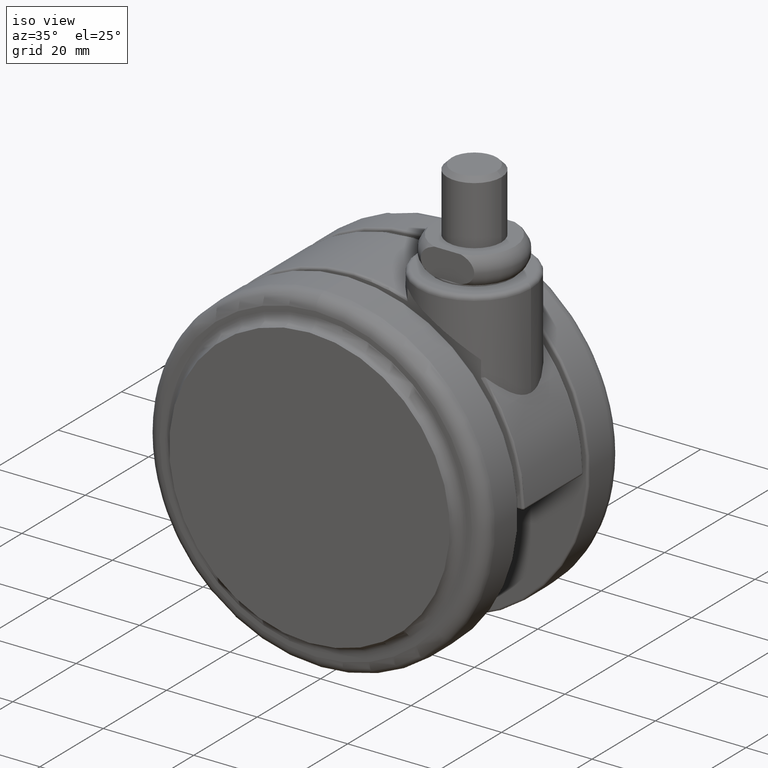
[diagram: clean part render]
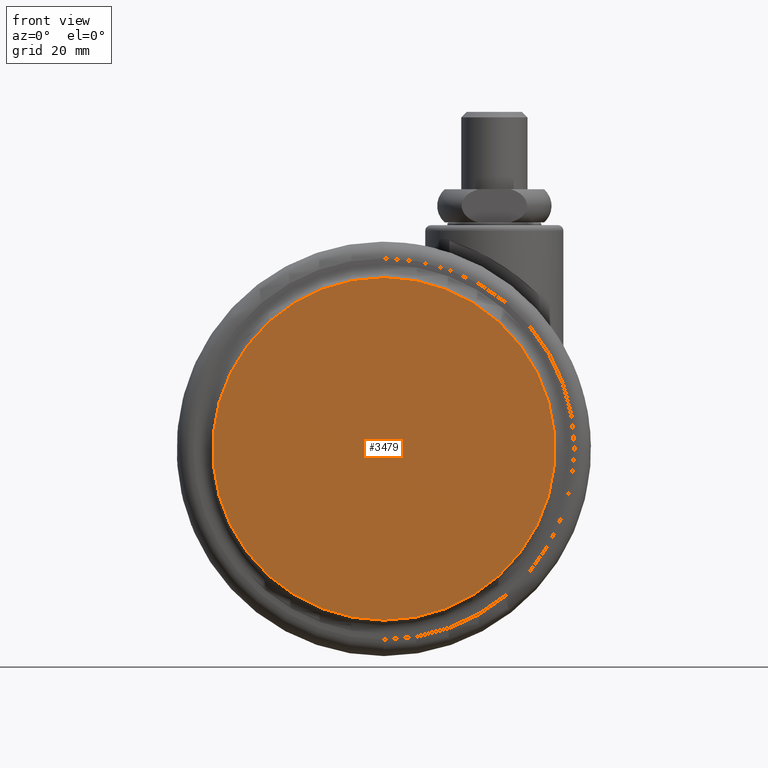
[diagram: tour spotlight — one face highlighted and labeled with its STEP entity id]
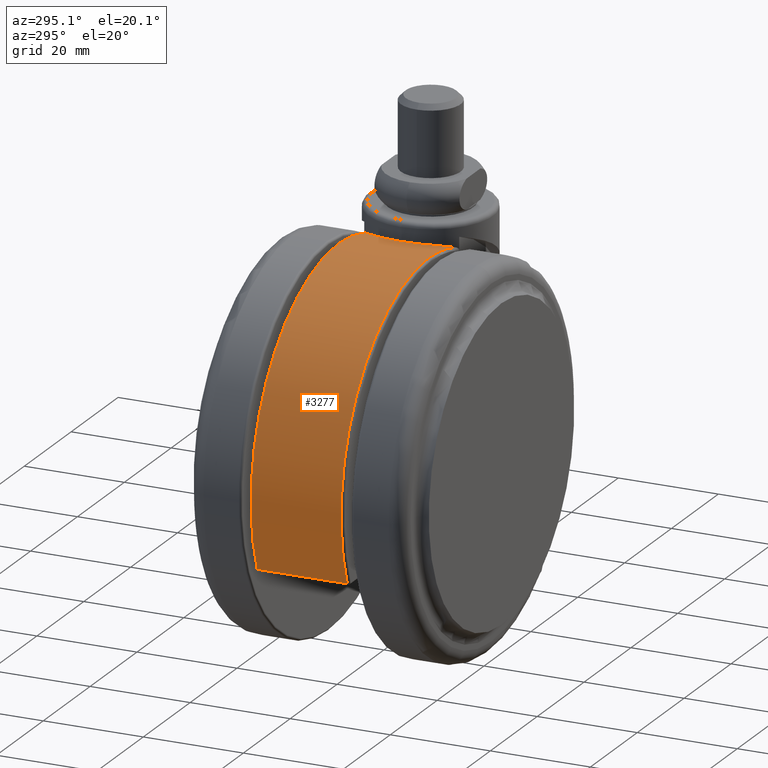
[diagram: tour spotlight — one face highlighted and labeled with its STEP entity id]
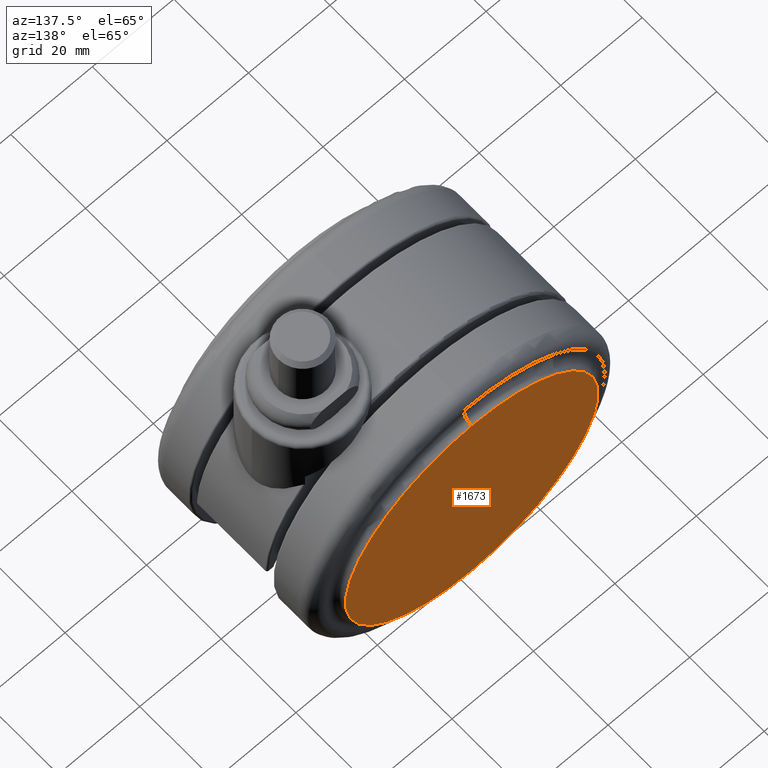
[diagram: tour spotlight — one face highlighted and labeled with its STEP entity id]
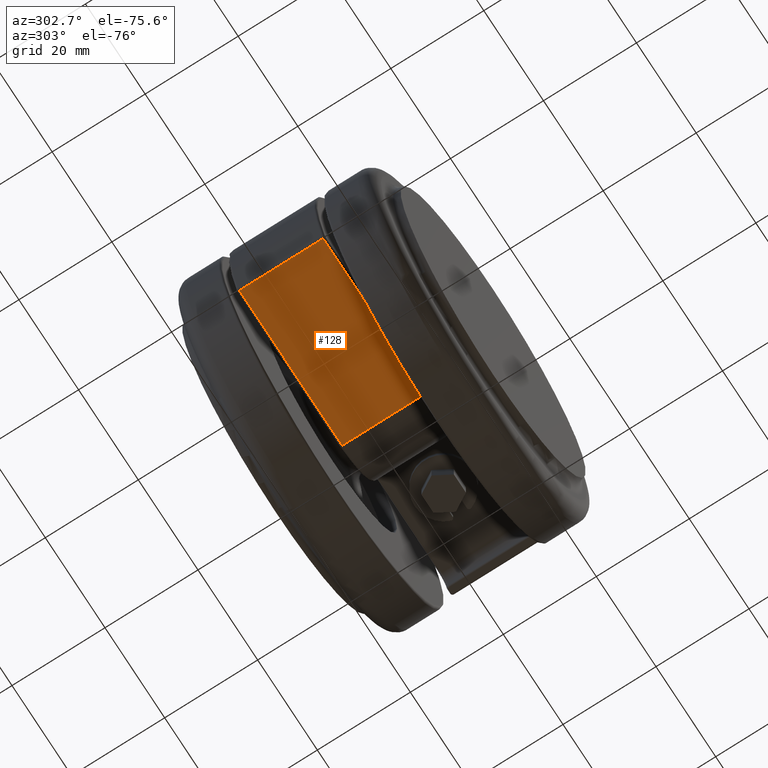
[diagram: tour spotlight — one face highlighted and labeled with its STEP entity id]
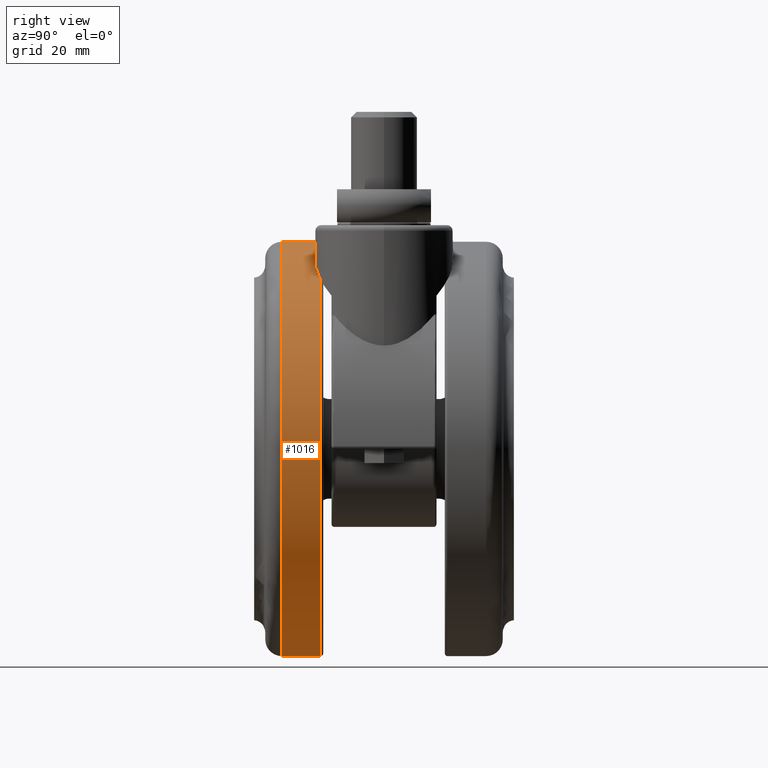
[diagram: tour spotlight — one face highlighted and labeled with its STEP entity id]
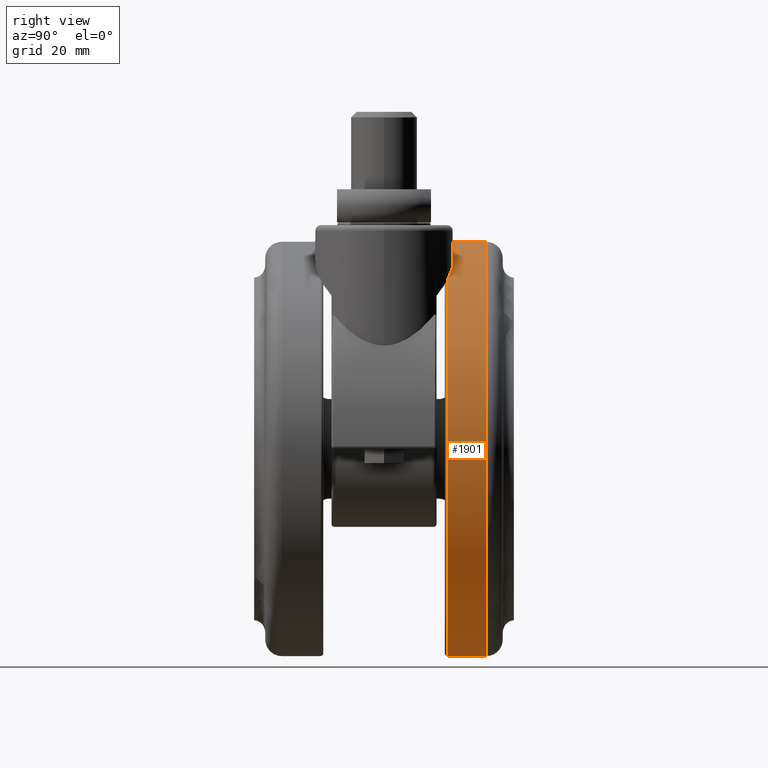
[diagram: tour spotlight — one face highlighted and labeled with its STEP entity id]
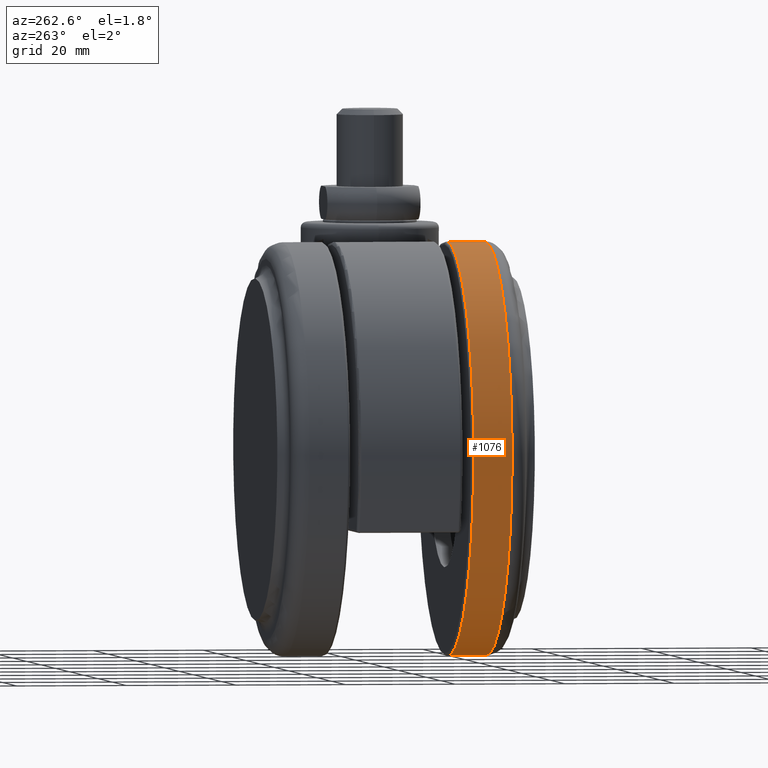
[diagram: tour spotlight — one face highlighted and labeled with its STEP entity id]
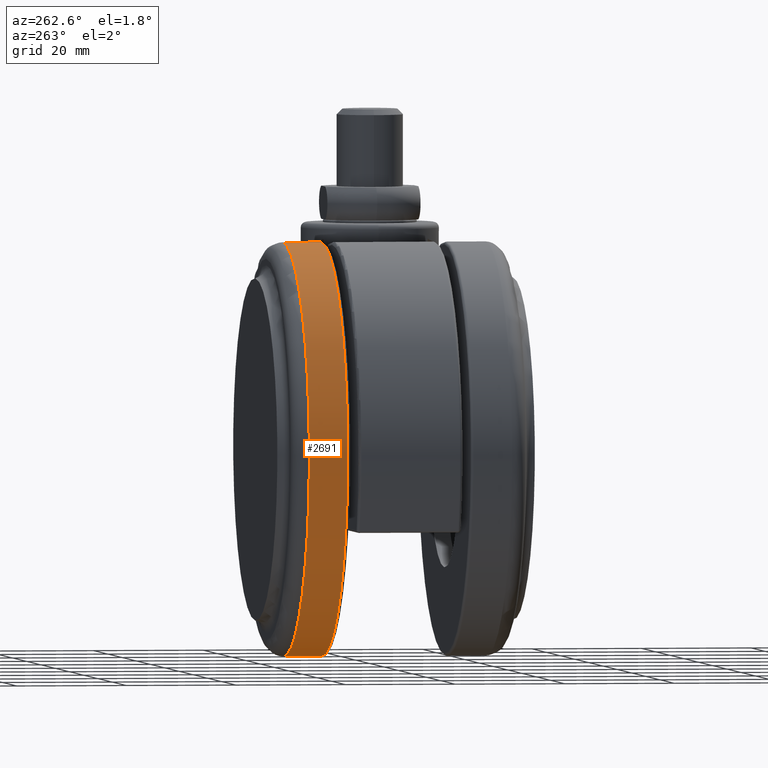
[diagram: tour spotlight — one face highlighted and labeled with its STEP entity id]
A machine part: a face-by-face anatomy tour. The part has 126 B-rep faces; the first image is the clean iso view, then the 8 largest visible faces are spotlighted one at a time (largest first), each with its STEP entity span.

Face 1 — front view, entity #3479. In plain terms, the highlighted planar face has unit normal (0, -1, 0).
Definition (entity closure, byte-faithful):
#116 = EDGE_CURVE ( 'NONE', #3662, #1943, #3283, .T. ) ;
#235 = ORIENTED_EDGE ( 'NONE', *, *, #116, .T. ) ;
#494 = AXIS2_PLACEMENT_3D ( 'NONE', #2739, #1700, #1677 ) ;
#603 = CARTESIAN_POINT ( 'NONE',  ( -20.00000000000000000, -23.50000000000000000, -40.50000000000000000 ) ) ;
#976 = DIRECTION ( 'NONE',  ( 0.0000000000000000000, -1.000000000000000000, 0.0000000000000000000 ) ) ;
#1677 = DIRECTION ( 'NONE',  ( 0.0000000000000000000, 0.0000000000000000000, -1.000000000000000000 ) ) ;
#1700 = DIRECTION ( 'NONE',  ( 0.0000000000000000000, -1.000000000000000000, 0.0000000000000000000 ) ) ;
#1809 = DIRECTION ( 'NONE',  ( 0.0000000000000000000, 0.0000000000000000000, -1.000000000000000000 ) ) ;
#1870 = CIRCLE ( 'NONE', #2432, 31.00000000000000700 ) ;
#1929 = ORIENTED_EDGE ( 'NONE', *, *, #3006, .T. ) ;
#1943 = VERTEX_POINT ( 'NONE', #2853 ) ;
#2407 = PLANE ( 'NONE',  #3504 ) ;
#2432 = AXIS2_PLACEMENT_3D ( 'NONE', #2766, #976, #3077 ) ;
#2739 = CARTESIAN_POINT ( 'NONE',  ( -20.00000000000000000, -23.50000000000000000, -40.50000000000000000 ) ) ;
#2766 = CARTESIAN_POINT ( 'NONE',  ( -20.00000000000000000, -23.50000000000000000, -40.50000000000000000 ) ) ;
#2798 = CARTESIAN_POINT ( 'NONE',  ( -19.99999999999999600, -23.50000000000000000, -9.500000000000001800 ) ) ;
#2853 = CARTESIAN_POINT ( 'NONE',  ( -20.00000000000000000, -23.50000000000000000, -71.50000000000001400 ) ) ;
#2966 = EDGE_LOOP ( 'NONE', ( #1929, #235 ) ) ;
#3006 = EDGE_CURVE ( 'NONE', #1943, #3662, #1870, .T. ) ;
#3077 = DIRECTION ( 'NONE',  ( 0.0000000000000000000, 0.0000000000000000000, -1.000000000000000000 ) ) ;
#3283 = CIRCLE ( 'NONE', #494, 31.00000000000000700 ) ;
#3479 = ADVANCED_FACE ( 'NONE', ( #3835 ), #2407, .T. ) ;
#3504 = AXIS2_PLACEMENT_3D ( 'NONE', #603, #3623, #1809 ) ;
#3623 = DIRECTION ( 'NONE',  ( 0.0000000000000000000, -1.000000000000000000, 0.0000000000000000000 ) ) ;
#3662 = VERTEX_POINT ( 'NONE', #2798 ) ;
#3835 = FACE_OUTER_BOUND ( 'NONE', #2966, .T. ) ;

Face 2 — auxiliary view, entity #3277. In plain terms, the highlighted cylindrical surface (partial cylindrical patch) has radius 37.5 mm, axis along (0, -1, 0).
Definition (entity closure, byte-faithful):
#42 = AXIS2_PLACEMENT_3D ( 'NONE', #838, #2935, #1132 ) ;
#86 = CARTESIAN_POINT ( 'NONE',  ( -11.65766593866017000, -4.530314039475490200, -3.939311114517211700 ) ) ;
#150 = CARTESIAN_POINT ( 'NONE',  ( -10.51789632378315200, 6.767247206361606300, -4.217783199591902000 ) ) ;
#239 = B_SPLINE_CURVE_WITH_KNOTS ( 'NONE', 3,
 ( #3762, #764, #2862, #1067, #3167, #1364, #3470, #1665, #3775, #1950, #150, #2269, #461, #2566, #780, #2873 ),
 .UNSPECIFIED., .F., .F.,
 ( 4, 2, 2, 2, 2, 2, 2, 4 ),
 ( 0.01083297000393782300, 0.01209086360940814100, 0.01334875721487845800, 0.01586454442581909300, 0.01712243803128940900, 0.01838033163675972500, 0.01963822524223004400, 0.02089611884770036000 ),
 .UNSPECIFIED. ) ;
#342 = VECTOR ( 'NONE', #2556, 1000.000000000000000 ) ;
#396 = CARTESIAN_POINT ( 'NONE',  ( -9.267378490791253800, -8.428721800230761100, -4.563286331331251100 ) ) ;
#408 = CARTESIAN_POINT ( 'NONE',  ( -12.05401286481520300, -3.335758711177920300, -3.851291589132261400 ) ) ;
#461 = CARTESIAN_POINT ( 'NONE',  ( -9.794559992498440300, 7.777407367369056200, -4.414310978766519800 ) ) ;
#534 = AXIS2_PLACEMENT_3D ( 'NONE', #1113, #1922, #1689 ) ;
#606 = VERTEX_POINT ( 'NONE', #1709 ) ;
#714 = CARTESIAN_POINT ( 'NONE',  ( -12.41604507323763200, -1.677237000265646300, -3.774477651932344200 ) ) ;
#722 = ORIENTED_EDGE ( 'NONE', *, *, #3201, .T. ) ;
#764 = CARTESIAN_POINT ( 'NONE',  ( -12.50000000000000000, 0.4198857714410683100, -3.757653858252427700 ) ) ;
#770 = AXIS2_PLACEMENT_3D ( 'NONE', #2154, #3072, #3043 ) ;
#780 = CARTESIAN_POINT ( 'NONE',  ( -8.972938191872776400, 8.712518925962278600, -4.656565500695855100 ) ) ;
#838 = CARTESIAN_POINT ( 'NONE',  ( -20.00000000000045100, -8.999999999999799300, -40.50000000000000000 ) ) ;
#910 = EDGE_CURVE ( 'NONE', #1749, #1784, #3898, .T. ) ;
#1021 = CARTESIAN_POINT ( 'NONE',  ( -12.50000000000000000, 2.995251654553703900E-014, -3.757653858252425000 ) ) ;
#1067 = CARTESIAN_POINT ( 'NONE',  ( -12.39317029340259800, 1.685029787549746400, -3.779596173792669300 ) ) ;
#1113 = CARTESIAN_POINT ( 'NONE',  ( -20.00000000000045100, 9.000000000000199000, -40.50000000000000000 ) ) ;
#1132 = DIRECTION ( 'NONE',  ( 0.0000000000000000000, 0.0000000000000000000, 1.000000000000000000 ) ) ;
#1140 = EDGE_CURVE ( 'NONE', #1784, #1859, #3557, .T. ) ;
#1307 = CARTESIAN_POINT ( 'NONE',  ( -9.802904443546696100, -7.800582663888066600, -4.409683149507409400 ) ) ;
#1364 = CARTESIAN_POINT ( 'NONE',  ( -12.07499608784259600, 3.339284003571599600, -3.846566198035183500 ) ) ;
#1419 = CARTESIAN_POINT ( 'NONE',  ( -54.86951361419750100, -8.999999999999799300, -54.29735555493609700 ) ) ;
#1524 = CARTESIAN_POINT ( 'NONE',  ( -8.674675786448901200, -8.999999999999809900, -4.751055519666890000 ) ) ;
#1606 = CARTESIAN_POINT ( 'NONE',  ( -10.73847770299704000, -6.411853426593876500, -4.161066474243648700 ) ) ;
#1612 = ORIENTED_EDGE ( 'NONE', *, *, #910, .T. ) ;
#1617 = CARTESIAN_POINT ( 'NONE',  ( -54.86951361419750100, 9.000000000000199000, -54.29735555493609700 ) ) ;
#1665 = CARTESIAN_POINT ( 'NONE',  ( -11.32890675711923300, 5.299343921343998800, -4.015880330838450100 ) ) ;
#1686 = DIRECTION ( 'NONE',  ( 0.0000000000000000000, -1.000000000000000000, 0.0000000000000000000 ) ) ;
#1689 = DIRECTION ( 'NONE',  ( 0.0000000000000000000, 0.0000000000000000000, -1.000000000000000000 ) ) ;
#1709 = CARTESIAN_POINT ( 'NONE',  ( -8.674675786448901200, -8.999999999999809900, -4.751055519666890000 ) ) ;
#1741 = EDGE_CURVE ( 'NONE', #1859, #3422, #3892, .T. ) ;
#1749 = VERTEX_POINT ( 'NONE', #2183 ) ;
#1784 = VERTEX_POINT ( 'NONE', #1617 ) ;
#1852 = VERTEX_POINT ( 'NONE', #2322 ) ;
#1859 = VERTEX_POINT ( 'NONE', #1419 ) ;
#1894 = CARTESIAN_POINT ( 'NONE',  ( -11.32877515779916800, -5.299412595533453000, -4.015916222165394300 ) ) ;
#1922 = DIRECTION ( 'NONE',  ( 0.0000000000000000000, -1.000000000000000000, 0.0000000000000000000 ) ) ;
#1950 = CARTESIAN_POINT ( 'NONE',  ( -10.73730232612175200, 6.413705260039230400, -4.161370447469451500 ) ) ;
#2067 = FACE_OUTER_BOUND ( 'NONE', #3938, .T. ) ;
#2154 = CARTESIAN_POINT ( 'NONE',  ( -20.00000000000045100, -8.999999999999799300, -40.50000000000000000 ) ) ;
#2182 = B_SPLINE_CURVE_WITH_KNOTS ( 'NONE', 3,
 ( #1524, #396, #1307, #3410, #1606, #3722, #1894, #86, #2210, #408, #2511, #714, #2813, #1021 ),
 .UNSPECIFIED., .F., .F.,
 ( 4, 2, 2, 2, 2, 2, 4 ),
 ( 0.0007578292614578130900, 0.003276614447077814200, 0.004536007039887815200, 0.005795399632697815700, 0.007054792225507816200, 0.008314184818317818500, 0.01083297000393782300 ),
 .UNSPECIFIED. ) ;
#2183 = CARTESIAN_POINT ( 'NONE',  ( -8.674675786448538900, 9.000000000000230900, -4.751055519667010800 ) ) ;
#2187 = EDGE_CURVE ( 'NONE', #606, #1852, #2182, .T. ) ;
#2210 = CARTESIAN_POINT ( 'NONE',  ( -11.80282795274265500, -4.137603731906472700, -3.906654837730500200 ) ) ;
#2269 = CARTESIAN_POINT ( 'NONE',  ( -10.04652675849994200, 7.449099134835352100, -4.344254723362667800 ) ) ;
#2282 = CARTESIAN_POINT ( 'NONE',  ( -20.00000000000045100, 0.0000000000000000000, -40.50000000000000000 ) ) ;
#2322 = CARTESIAN_POINT ( 'NONE',  ( -12.50000000000000000, 2.995251654553703900E-014, -3.757653858252425000 ) ) ;
#2364 = CARTESIAN_POINT ( 'NONE',  ( -20.00000000000045100, -8.999999999999799300, -3.000000000000002700 ) ) ;
#2503 = CARTESIAN_POINT ( 'NONE',  ( -54.86951361419750100, 0.0000000000000000000, -54.29735555493609700 ) ) ;
#2511 = CARTESIAN_POINT ( 'NONE',  ( -12.16031509086136700, -2.925245578562813500, -3.828527006093505500 ) ) ;
#2556 = DIRECTION ( 'NONE',  ( 0.0000000000000000000, -1.000000000000000000, 0.0000000000000000000 ) ) ;
#2566 = CARTESIAN_POINT ( 'NONE',  ( -9.258363189833458400, 8.408577873207479000, -4.570274193610124800 ) ) ;
#2813 = CARTESIAN_POINT ( 'NONE',  ( -12.49999999999999800, -0.8407722689415021400, -3.757653858252426800 ) ) ;
#2862 = CARTESIAN_POINT ( 'NONE',  ( -12.47890053855938700, 0.8408547169093227900, -3.761941011588097300 ) ) ;
#2873 = CARTESIAN_POINT ( 'NONE',  ( -8.674675786448538900, 9.000000000000230900, -4.751055519667010800 ) ) ;
#2935 = DIRECTION ( 'NONE',  ( 0.0000000000000000000, 1.000000000000000000, 0.0000000000000000000 ) ) ;
#2965 = AXIS2_PLACEMENT_3D ( 'NONE', #2282, #1686, #3191 ) ;
#3024 = ORIENTED_EDGE ( 'NONE', *, *, #3361, .T. ) ;
#3043 = DIRECTION ( 'NONE',  ( 0.0000000000000000000, 0.0000000000000000000, 1.000000000000000000 ) ) ;
#3072 = DIRECTION ( 'NONE',  ( 0.0000000000000000000, 1.000000000000000000, 0.0000000000000000000 ) ) ;
#3122 = ORIENTED_EDGE ( 'NONE', *, *, #1140, .T. ) ;
#3167 = CARTESIAN_POINT ( 'NONE',  ( -12.32874735431087700, 2.104418142397915100, -3.792924973968794700 ) ) ;
#3191 = DIRECTION ( 'NONE',  ( 0.0000000000000000000, 0.0000000000000000000, -1.000000000000000000 ) ) ;
#3201 = EDGE_CURVE ( 'NONE', #1852, #1749, #239, .T. ) ;
#3277 = ADVANCED_FACE ( 'NONE', ( #2067 ), #3591, .T. ) ;
#3361 = EDGE_CURVE ( 'NONE', #3422, #606, #3501, .T. ) ;
#3410 = CARTESIAN_POINT ( 'NONE',  ( -10.51517581383509300, -6.771638203603449900, -4.218482085273332200 ) ) ;
#3422 = VERTEX_POINT ( 'NONE', #2364 ) ;
#3470 = CARTESIAN_POINT ( 'NONE',  ( -11.82515094896099400, 4.138176200578661800, -3.900311104676254200 ) ) ;
#3501 = CIRCLE ( 'NONE', #42, 37.50000000000000000 ) ;
#3557 = LINE ( 'NONE', #2503, #342 ) ;
#3591 = CYLINDRICAL_SURFACE ( 'NONE', #2965, 37.50000000000000000 ) ;
#3722 = CARTESIAN_POINT ( 'NONE',  ( -11.14504601772913600, -5.675801001144079400, -4.059861759056297500 ) ) ;
#3740 = ORIENTED_EDGE ( 'NONE', *, *, #2187, .T. ) ;
#3762 = CARTESIAN_POINT ( 'NONE',  ( -12.50000000000000000, 2.995251654553703900E-014, -3.757653858252425000 ) ) ;
#3775 = CARTESIAN_POINT ( 'NONE',  ( -11.14238452377035500, 5.680892846167517400, -4.060512983454700000 ) ) ;
#3841 = ORIENTED_EDGE ( 'NONE', *, *, #1741, .T. ) ;
#3892 = CIRCLE ( 'NONE', #770, 37.50000000000000000 ) ;
#3898 = CIRCLE ( 'NONE', #534, 37.50000000000000000 ) ;
#3938 = EDGE_LOOP ( 'NONE', ( #3740, #722, #1612, #3122, #3841, #3024 ) ) ;

Face 3 — auxiliary view, entity #1673. In plain terms, the highlighted planar face has unit normal (0, 1, 0).
Definition (entity closure, byte-faithful):
#73 = DIRECTION ( 'NONE',  ( 0.0000000000000000000, 0.0000000000000000000, -1.000000000000000000 ) ) ;
#127 = EDGE_LOOP ( 'NONE', ( #1256, #2855 ) ) ;
#143 = AXIS2_PLACEMENT_3D ( 'NONE', #2235, #3913, #828 ) ;
#228 = CIRCLE ( 'NONE', #3246, 31.00000000000000700 ) ;
#828 = DIRECTION ( 'NONE',  ( 0.0000000000000000000, 0.0000000000000000000, -1.000000000000000000 ) ) ;
#1042 = DIRECTION ( 'NONE',  ( 0.0000000000000000000, 0.0000000000000000000, -1.000000000000000000 ) ) ;
#1087 = VERTEX_POINT ( 'NONE', #2865 ) ;
#1256 = ORIENTED_EDGE ( 'NONE', *, *, #3107, .F. ) ;
#1313 = PLANE ( 'NONE',  #143 ) ;
#1340 = EDGE_CURVE ( 'NONE', #1087, #3002, #3698, .T. ) ;
#1673 = ADVANCED_FACE ( 'NONE', ( #2462 ), #1313, .T. ) ;
#1886 = DIRECTION ( 'NONE',  ( -1.582413479254075000E-015, -1.000000000000000000, 0.0000000000000000000 ) ) ;
#2085 = DIRECTION ( 'NONE',  ( -1.582413479254075000E-015, -1.000000000000000000, 0.0000000000000000000 ) ) ;
#2137 = CARTESIAN_POINT ( 'NONE',  ( -20.00000000000000000, 23.50000000000000000, -40.50000000000000000 ) ) ;
#2142 = CARTESIAN_POINT ( 'NONE',  ( -20.00000000000000000, 23.50000000000000000, -71.50000000000001400 ) ) ;
#2235 = CARTESIAN_POINT ( 'NONE',  ( -20.00000000000000000, 23.50000000000000000, -40.50000000000000000 ) ) ;
#2462 = FACE_OUTER_BOUND ( 'NONE', #127, .T. ) ;
#2855 = ORIENTED_EDGE ( 'NONE', *, *, #1340, .F. ) ;
#2865 = CARTESIAN_POINT ( 'NONE',  ( -20.00000000000000400, 23.50000000000000000, -9.500000000000001800 ) ) ;
#3002 = VERTEX_POINT ( 'NONE', #2142 ) ;
#3107 = EDGE_CURVE ( 'NONE', #3002, #1087, #228, .T. ) ;
#3246 = AXIS2_PLACEMENT_3D ( 'NONE', #3708, #1886, #73 ) ;
#3698 = CIRCLE ( 'NONE', #3911, 31.00000000000000700 ) ;
#3708 = CARTESIAN_POINT ( 'NONE',  ( -20.00000000000000000, 23.50000000000000000, -40.50000000000000000 ) ) ;
#3911 = AXIS2_PLACEMENT_3D ( 'NONE', #2137, #2085, #1042 ) ;
#3913 = DIRECTION ( 'NONE',  ( 1.582413479254075000E-015, 1.000000000000000000, 0.0000000000000000000 ) ) ;

Face 4 — auxiliary view, entity #128. In plain terms, the highlighted planar face has unit normal (0, 0, -1).
Definition (entity closure, byte-faithful):
#128 = ADVANCED_FACE ( 'NONE', ( #159 ), #156, .T. ) ;
#156 = PLANE ( 'NONE',  #1505 ) ;
#159 = FACE_OUTER_BOUND ( 'NONE', #1046, .T. ) ;
#195 = EDGE_CURVE ( 'NONE', #3428, #2000, #2289, .T. ) ;
#205 = VERTEX_POINT ( 'NONE', #679 ) ;
#330 = DIRECTION ( 'NONE',  ( -1.000000000000000000, -0.0000000000000000000, -0.0000000000000000000 ) ) ;
#505 = ORIENTED_EDGE ( 'NONE', *, *, #3235, .T. ) ;
#679 = CARTESIAN_POINT ( 'NONE',  ( -54.40458676600820100, 9.000000000000230900, -54.61339081420359800 ) ) ;
#802 = CARTESIAN_POINT ( 'NONE',  ( -20.00000000000045100, 9.000000000000230900, -54.61339081420359800 ) ) ;
#935 = CARTESIAN_POINT ( 'NONE',  ( -54.74280068914399800, -8.999999999999799300, -54.61339081420359800 ) ) ;
#1046 = EDGE_LOOP ( 'NONE', ( #3528, #1998, #505, #3713 ) ) ;
#1081 = DIRECTION ( 'NONE',  ( 0.0000000000000000000, 1.000000000000000000, 0.0000000000000000000 ) ) ;
#1291 = EDGE_CURVE ( 'NONE', #3894, #3428, #1666, .T. ) ;
#1505 = AXIS2_PLACEMENT_3D ( 'NONE', #3206, #3183, #1585 ) ;
#1585 = DIRECTION ( 'NONE',  ( -1.000000000000000000, 0.0000000000000000000, 0.0000000000000000000 ) ) ;
#1666 = LINE ( 'NONE', #1800, #3177 ) ;
#1800 = CARTESIAN_POINT ( 'NONE',  ( -20.00000000000045100, 990.5000000000000000, -54.61339081420359800 ) ) ;
#1998 = ORIENTED_EDGE ( 'NONE', *, *, #195, .T. ) ;
#2000 = VERTEX_POINT ( 'NONE', #3041 ) ;
#2065 = VECTOR ( 'NONE', #3202, 1000.000000000000000 ) ;
#2173 = LINE ( 'NONE', #2553, #3691 ) ;
#2289 = LINE ( 'NONE', #935, #2994 ) ;
#2343 = EDGE_CURVE ( 'NONE', #205, #3894, #2880, .T. ) ;
#2553 = CARTESIAN_POINT ( 'NONE',  ( -54.40458676600820100, 9.500000000000170500, -54.61339081420359800 ) ) ;
#2781 = DIRECTION ( 'NONE',  ( 0.0000000000000000000, -1.000000000000000000, 0.0000000000000000000 ) ) ;
#2880 = LINE ( 'NONE', #802, #2065 ) ;
#2994 = VECTOR ( 'NONE', #330, 1000.000000000000000 ) ;
#3041 = CARTESIAN_POINT ( 'NONE',  ( -54.40458676600820100, -8.999999999999799300, -54.61339081420359800 ) ) ;
#3177 = VECTOR ( 'NONE', #2781, 1000.000000000000000 ) ;
#3183 = DIRECTION ( 'NONE',  ( 0.0000000000000000000, 0.0000000000000000000, -1.000000000000000000 ) ) ;
#3202 = DIRECTION ( 'NONE',  ( 1.000000000000000000, 0.0000000000000000000, 0.0000000000000000000 ) ) ;
#3206 = CARTESIAN_POINT ( 'NONE',  ( -54.74280068914399800, 990.5000000000000000, -54.61339081420359800 ) ) ;
#3235 = EDGE_CURVE ( 'NONE', #2000, #205, #2173, .T. ) ;
#3428 = VERTEX_POINT ( 'NONE', #3585 ) ;
#3528 = ORIENTED_EDGE ( 'NONE', *, *, #1291, .T. ) ;
#3545 = CARTESIAN_POINT ( 'NONE',  ( -20.00000000000045100, 9.000000000000230900, -54.61339081420359800 ) ) ;
#3585 = CARTESIAN_POINT ( 'NONE',  ( -20.00000000000045100, -8.999999999999788600, -54.61339081420359800 ) ) ;
#3691 = VECTOR ( 'NONE', #1081, 1000.000000000000000 ) ;
#3713 = ORIENTED_EDGE ( 'NONE', *, *, #2343, .T. ) ;
#3894 = VERTEX_POINT ( 'NONE', #3545 ) ;

Face 5 — right view, entity #1016. In plain terms, the highlighted cylindrical surface (partial cylindrical patch) has radius 37.5 mm, axis along (0, -1, 0).
Definition (entity closure, byte-faithful):
#140 = VERTEX_POINT ( 'NONE', #1248 ) ;
#174 = DIRECTION ( 'NONE',  ( 0.0000000000000000000, 0.0000000000000000000, -1.000000000000000000 ) ) ;
#316 = EDGE_LOOP ( 'NONE', ( #1683, #1992, #3580, #3653 ) ) ;
#322 = EDGE_CURVE ( 'NONE', #3208, #140, #592, .T. ) ;
#400 = VECTOR ( 'NONE', #3502, 1000.000000000000000 ) ;
#449 = CARTESIAN_POINT ( 'NONE',  ( -19.99999999999999600, -11.50000000000000000, -3.000000000000002700 ) ) ;
#513 = EDGE_CURVE ( 'NONE', #3338, #140, #2239, .T. ) ;
#580 = FACE_OUTER_BOUND ( 'NONE', #316, .T. ) ;
#592 = LINE ( 'NONE', #3429, #400 ) ;
#963 = CARTESIAN_POINT ( 'NONE',  ( -20.00000000000000000, -11.50000000000000000, -78.00000000000000000 ) ) ;
#1016 = ADVANCED_FACE ( 'NONE', ( #580 ), #3511, .T. ) ;
#1100 = VECTOR ( 'NONE', #2011, 1000.000000000000000 ) ;
#1248 = CARTESIAN_POINT ( 'NONE',  ( -19.99999999999999600, -18.50000000000000000, -3.000000000000000400 ) ) ;
#1319 = AXIS2_PLACEMENT_3D ( 'NONE', #3805, #1978, #174 ) ;
#1463 = CIRCLE ( 'NONE', #1319, 37.50000000000000000 ) ;
#1683 = ORIENTED_EDGE ( 'NONE', *, *, #2298, .T. ) ;
#1876 = LINE ( 'NONE', #3217, #1100 ) ;
#1978 = DIRECTION ( 'NONE',  ( 0.0000000000000000000, -1.000000000000000000, 0.0000000000000000000 ) ) ;
#1992 = ORIENTED_EDGE ( 'NONE', *, *, #322, .T. ) ;
#2003 = CARTESIAN_POINT ( 'NONE',  ( -20.00000000000000000, -18.50000000000000000, -78.00000000000001400 ) ) ;
#2011 = DIRECTION ( 'NONE',  ( 0.0000000000000000000, -1.000000000000000000, 0.0000000000000000000 ) ) ;
#2239 = CIRCLE ( 'NONE', #3870, 37.50000000000000000 ) ;
#2298 = EDGE_CURVE ( 'NONE', #3000, #3208, #1463, .T. ) ;
#2479 = CARTESIAN_POINT ( 'NONE',  ( -20.00000000000000000, -18.50000000000000000, -40.50000000000000000 ) ) ;
#2753 = AXIS2_PLACEMENT_3D ( 'NONE', #3364, #3172, #3205 ) ;
#2874 = DIRECTION ( 'NONE',  ( 0.0000000000000000000, -1.000000000000000000, 0.0000000000000000000 ) ) ;
#2937 = DIRECTION ( 'NONE',  ( 0.0000000000000000000, 0.0000000000000000000, -1.000000000000000000 ) ) ;
#3000 = VERTEX_POINT ( 'NONE', #963 ) ;
#3172 = DIRECTION ( 'NONE',  ( 0.0000000000000000000, -1.000000000000000000, 0.0000000000000000000 ) ) ;
#3205 = DIRECTION ( 'NONE',  ( 0.0000000000000000000, 0.0000000000000000000, -1.000000000000000000 ) ) ;
#3208 = VERTEX_POINT ( 'NONE', #449 ) ;
#3217 = CARTESIAN_POINT ( 'NONE',  ( -20.00000000000000000, 0.0000000000000000000, -78.00000000000000000 ) ) ;
#3338 = VERTEX_POINT ( 'NONE', #2003 ) ;
#3346 = EDGE_CURVE ( 'NONE', #3000, #3338, #1876, .T. ) ;
#3364 = CARTESIAN_POINT ( 'NONE',  ( -20.00000000000000000, 0.0000000000000000000, -40.50000000000000000 ) ) ;
#3429 = CARTESIAN_POINT ( 'NONE',  ( -19.99999999999999600, 0.0000000000000000000, -3.000000000000002700 ) ) ;
#3502 = DIRECTION ( 'NONE',  ( 0.0000000000000000000, -1.000000000000000000, 0.0000000000000000000 ) ) ;
#3511 = CYLINDRICAL_SURFACE ( 'NONE', #2753, 37.50000000000000000 ) ;
#3580 = ORIENTED_EDGE ( 'NONE', *, *, #513, .F. ) ;
#3653 = ORIENTED_EDGE ( 'NONE', *, *, #3346, .F. ) ;
#3805 = CARTESIAN_POINT ( 'NONE',  ( -20.00000000000000000, -11.50000000000000000, -40.50000000000000000 ) ) ;
#3870 = AXIS2_PLACEMENT_3D ( 'NONE', #2479, #2874, #2937 ) ;

Face 6 — right view, entity #1901. In plain terms, the highlighted cylindrical surface (partial cylindrical patch) has radius 37.5 mm, axis along (0, 1, 0).
Definition (entity closure, byte-faithful):
#267 = EDGE_CURVE ( 'NONE', #1358, #3451, #2900, .T. ) ;
#655 = CARTESIAN_POINT ( 'NONE',  ( -19.99999999999998200, 11.50000000000000000, -3.000000000000002700 ) ) ;
#724 = DIRECTION ( 'NONE',  ( 0.0000000000000000000, 0.0000000000000000000, -1.000000000000000000 ) ) ;
#750 = ORIENTED_EDGE ( 'NONE', *, *, #267, .T. ) ;
#813 = CARTESIAN_POINT ( 'NONE',  ( -20.00000000000000000, 18.50000000000000000, -40.50000000000000000 ) ) ;
#1049 = CIRCLE ( 'NONE', #1405, 37.50000000000000000 ) ;
#1184 = DIRECTION ( 'NONE',  ( -1.582413479254075000E-015, -1.000000000000000000, 0.0000000000000000000 ) ) ;
#1314 = CARTESIAN_POINT ( 'NONE',  ( -20.00000000000000000, 11.50000000000000000, -40.50000000000000000 ) ) ;
#1358 = VERTEX_POINT ( 'NONE', #1573 ) ;
#1405 = AXIS2_PLACEMENT_3D ( 'NONE', #1314, #3421, #1620 ) ;
#1482 = CARTESIAN_POINT ( 'NONE',  ( -20.00000000000000000, 18.50000000000000000, -78.00000000000001400 ) ) ;
#1573 = CARTESIAN_POINT ( 'NONE',  ( -20.00000000000000000, 11.50000000000000000, -78.00000000000000000 ) ) ;
#1620 = DIRECTION ( 'NONE',  ( 0.0000000000000000000, 0.0000000000000000000, -1.000000000000000000 ) ) ;
#1691 = EDGE_CURVE ( 'NONE', #3451, #2337, #3267, .T. ) ;
#1747 = DIRECTION ( 'NONE',  ( 0.0000000000000000000, 0.0000000000000000000, -1.000000000000000000 ) ) ;
#1878 = CYLINDRICAL_SURFACE ( 'NONE', #3800, 37.50000000000000000 ) ;
#1880 = EDGE_CURVE ( 'NONE', #2057, #2337, #2070, .T. ) ;
#1901 = ADVANCED_FACE ( 'NONE', ( #2785 ), #1878, .T. ) ;
#1941 = DIRECTION ( 'NONE',  ( 1.582413479254075000E-015, 1.000000000000000000, 0.0000000000000000000 ) ) ;
#2057 = VERTEX_POINT ( 'NONE', #655 ) ;
#2070 = LINE ( 'NONE', #3027, #3594 ) ;
#2088 = VECTOR ( 'NONE', #3921, 1000.000000000000000 ) ;
#2326 = CARTESIAN_POINT ( 'NONE',  ( -20.00000000000000000, 3.164826958508150300E-014, -78.00000000000000000 ) ) ;
#2337 = VERTEX_POINT ( 'NONE', #2896 ) ;
#2785 = FACE_OUTER_BOUND ( 'NONE', #3726, .T. ) ;
#2896 = CARTESIAN_POINT ( 'NONE',  ( -20.00000000000000400, 18.50000000000000000, -3.000000000000000400 ) ) ;
#2900 = LINE ( 'NONE', #2326, #2088 ) ;
#2954 = ORIENTED_EDGE ( 'NONE', *, *, #3664, .F. ) ;
#3027 = CARTESIAN_POINT ( 'NONE',  ( -20.00000000000000400, 3.164826958508150900E-014, -3.000000000000002700 ) ) ;
#3058 = ORIENTED_EDGE ( 'NONE', *, *, #1691, .T. ) ;
#3267 = CIRCLE ( 'NONE', #3879, 37.50000000000000000 ) ;
#3421 = DIRECTION ( 'NONE',  ( -1.582413479254075000E-015, -1.000000000000000000, 0.0000000000000000000 ) ) ;
#3451 = VERTEX_POINT ( 'NONE', #1482 ) ;
#3520 = CARTESIAN_POINT ( 'NONE',  ( -20.00000000000000000, 3.164826958508150300E-014, -40.50000000000000000 ) ) ;
#3594 = VECTOR ( 'NONE', #1941, 1000.000000000000000 ) ;
#3664 = EDGE_CURVE ( 'NONE', #1358, #2057, #1049, .T. ) ;
#3670 = ORIENTED_EDGE ( 'NONE', *, *, #1880, .F. ) ;
#3726 = EDGE_LOOP ( 'NONE', ( #3670, #2954, #750, #3058 ) ) ;
#3800 = AXIS2_PLACEMENT_3D ( 'NONE', #3520, #3831, #1747 ) ;
#3831 = DIRECTION ( 'NONE',  ( 1.582413479254075000E-015, 1.000000000000000000, 0.0000000000000000000 ) ) ;
#3879 = AXIS2_PLACEMENT_3D ( 'NONE', #813, #1184, #724 ) ;
#3921 = DIRECTION ( 'NONE',  ( 1.582413479254075000E-015, 1.000000000000000000, 0.0000000000000000000 ) ) ;

Face 7 — auxiliary view, entity #1076. In plain terms, the highlighted cylindrical surface (partial cylindrical patch) has radius 37.5 mm, axis along (0, -1, 0).
Definition (entity closure, byte-faithful):
#3 = EDGE_LOOP ( 'NONE', ( #2661, #360, #1077, #2575 ) ) ;
#140 = VERTEX_POINT ( 'NONE', #1248 ) ;
#222 = AXIS2_PLACEMENT_3D ( 'NONE', #3271, #1459, #3577 ) ;
#322 = EDGE_CURVE ( 'NONE', #3208, #140, #592, .T. ) ;
#360 = ORIENTED_EDGE ( 'NONE', *, *, #2494, .T. ) ;
#400 = VECTOR ( 'NONE', #3502, 1000.000000000000000 ) ;
#449 = CARTESIAN_POINT ( 'NONE',  ( -19.99999999999999600, -11.50000000000000000, -3.000000000000002700 ) ) ;
#530 = CYLINDRICAL_SURFACE ( 'NONE', #1469, 37.50000000000000000 ) ;
#536 = AXIS2_PLACEMENT_3D ( 'NONE', #3156, #1346, #3457 ) ;
#592 = LINE ( 'NONE', #3429, #400 ) ;
#667 = CIRCLE ( 'NONE', #536, 37.50000000000000000 ) ;
#963 = CARTESIAN_POINT ( 'NONE',  ( -20.00000000000000000, -11.50000000000000000, -78.00000000000000000 ) ) ;
#1076 = ADVANCED_FACE ( 'NONE', ( #1431 ), #530, .T. ) ;
#1077 = ORIENTED_EDGE ( 'NONE', *, *, #3346, .T. ) ;
#1100 = VECTOR ( 'NONE', #2011, 1000.000000000000000 ) ;
#1248 = CARTESIAN_POINT ( 'NONE',  ( -19.99999999999999600, -18.50000000000000000, -3.000000000000000400 ) ) ;
#1346 = DIRECTION ( 'NONE',  ( 0.0000000000000000000, -1.000000000000000000, 0.0000000000000000000 ) ) ;
#1431 = FACE_OUTER_BOUND ( 'NONE', #3, .T. ) ;
#1459 = DIRECTION ( 'NONE',  ( 0.0000000000000000000, -1.000000000000000000, 0.0000000000000000000 ) ) ;
#1469 = AXIS2_PLACEMENT_3D ( 'NONE', #2926, #2980, #2951 ) ;
#1876 = LINE ( 'NONE', #3217, #1100 ) ;
#2003 = CARTESIAN_POINT ( 'NONE',  ( -20.00000000000000000, -18.50000000000000000, -78.00000000000001400 ) ) ;
#2011 = DIRECTION ( 'NONE',  ( 0.0000000000000000000, -1.000000000000000000, 0.0000000000000000000 ) ) ;
#2494 = EDGE_CURVE ( 'NONE', #3208, #3000, #2593, .T. ) ;
#2575 = ORIENTED_EDGE ( 'NONE', *, *, #3184, .F. ) ;
#2593 = CIRCLE ( 'NONE', #222, 37.50000000000000000 ) ;
#2661 = ORIENTED_EDGE ( 'NONE', *, *, #322, .F. ) ;
#2926 = CARTESIAN_POINT ( 'NONE',  ( -20.00000000000000000, 0.0000000000000000000, -40.50000000000000000 ) ) ;
#2951 = DIRECTION ( 'NONE',  ( 0.0000000000000000000, 0.0000000000000000000, -1.000000000000000000 ) ) ;
#2980 = DIRECTION ( 'NONE',  ( 0.0000000000000000000, -1.000000000000000000, 0.0000000000000000000 ) ) ;
#3000 = VERTEX_POINT ( 'NONE', #963 ) ;
#3156 = CARTESIAN_POINT ( 'NONE',  ( -20.00000000000000000, -18.50000000000000000, -40.50000000000000000 ) ) ;
#3184 = EDGE_CURVE ( 'NONE', #140, #3338, #667, .T. ) ;
#3208 = VERTEX_POINT ( 'NONE', #449 ) ;
#3217 = CARTESIAN_POINT ( 'NONE',  ( -20.00000000000000000, 0.0000000000000000000, -78.00000000000000000 ) ) ;
#3271 = CARTESIAN_POINT ( 'NONE',  ( -20.00000000000000000, -11.50000000000000000, -40.50000000000000000 ) ) ;
#3338 = VERTEX_POINT ( 'NONE', #2003 ) ;
#3346 = EDGE_CURVE ( 'NONE', #3000, #3338, #1876, .T. ) ;
#3429 = CARTESIAN_POINT ( 'NONE',  ( -19.99999999999999600, 0.0000000000000000000, -3.000000000000002700 ) ) ;
#3457 = DIRECTION ( 'NONE',  ( 0.0000000000000000000, 0.0000000000000000000, -1.000000000000000000 ) ) ;
#3502 = DIRECTION ( 'NONE',  ( 0.0000000000000000000, -1.000000000000000000, 0.0000000000000000000 ) ) ;
#3577 = DIRECTION ( 'NONE',  ( 0.0000000000000000000, 0.0000000000000000000, -1.000000000000000000 ) ) ;

Face 8 — auxiliary view, entity #2691. In plain terms, the highlighted cylindrical surface (partial cylindrical patch) has radius 37.5 mm, axis along (0, 1, 0).
Definition (entity closure, byte-faithful):
#25 = DIRECTION ( 'NONE',  ( 0.0000000000000000000, 0.0000000000000000000, -1.000000000000000000 ) ) ;
#212 = DIRECTION ( 'NONE',  ( 0.0000000000000000000, 0.0000000000000000000, -1.000000000000000000 ) ) ;
#220 = DIRECTION ( 'NONE',  ( -1.582413479254075000E-015, -1.000000000000000000, 0.0000000000000000000 ) ) ;
#223 = CYLINDRICAL_SURFACE ( 'NONE', #561, 37.50000000000000000 ) ;
#267 = EDGE_CURVE ( 'NONE', #1358, #3451, #2900, .T. ) ;
#275 = DIRECTION ( 'NONE',  ( -1.582413479254075000E-015, -1.000000000000000000, 0.0000000000000000000 ) ) ;
#354 = CARTESIAN_POINT ( 'NONE',  ( -20.00000000000000000, 3.164826958508150300E-014, -40.50000000000000000 ) ) ;
#406 = ORIENTED_EDGE ( 'NONE', *, *, #267, .F. ) ;
#561 = AXIS2_PLACEMENT_3D ( 'NONE', #354, #2463, #25 ) ;
#655 = CARTESIAN_POINT ( 'NONE',  ( -19.99999999999998200, 11.50000000000000000, -3.000000000000002700 ) ) ;
#841 = AXIS2_PLACEMENT_3D ( 'NONE', #900, #275, #212 ) ;
#900 = CARTESIAN_POINT ( 'NONE',  ( -20.00000000000000000, 18.50000000000000000, -40.50000000000000000 ) ) ;
#1226 = FACE_OUTER_BOUND ( 'NONE', #3864, .T. ) ;
#1358 = VERTEX_POINT ( 'NONE', #1573 ) ;
#1482 = CARTESIAN_POINT ( 'NONE',  ( -20.00000000000000000, 18.50000000000000000, -78.00000000000001400 ) ) ;
#1529 = EDGE_CURVE ( 'NONE', #2337, #3451, #3741, .T. ) ;
#1573 = CARTESIAN_POINT ( 'NONE',  ( -20.00000000000000000, 11.50000000000000000, -78.00000000000000000 ) ) ;
#1880 = EDGE_CURVE ( 'NONE', #2057, #2337, #2070, .T. ) ;
#1941 = DIRECTION ( 'NONE',  ( 1.582413479254075000E-015, 1.000000000000000000, 0.0000000000000000000 ) ) ;
#2024 = CARTESIAN_POINT ( 'NONE',  ( -20.00000000000000000, 11.50000000000000000, -40.50000000000000000 ) ) ;
#2057 = VERTEX_POINT ( 'NONE', #655 ) ;
#2070 = LINE ( 'NONE', #3027, #3594 ) ;
#2088 = VECTOR ( 'NONE', #3921, 1000.000000000000000 ) ;
#2326 = CARTESIAN_POINT ( 'NONE',  ( -20.00000000000000000, 3.164826958508150300E-014, -78.00000000000000000 ) ) ;
#2337 = VERTEX_POINT ( 'NONE', #2896 ) ;
#2338 = DIRECTION ( 'NONE',  ( 0.0000000000000000000, 0.0000000000000000000, -1.000000000000000000 ) ) ;
#2422 = EDGE_CURVE ( 'NONE', #2057, #1358, #3499, .T. ) ;
#2463 = DIRECTION ( 'NONE',  ( 1.582413479254075000E-015, 1.000000000000000000, 0.0000000000000000000 ) ) ;
#2691 = ADVANCED_FACE ( 'NONE', ( #1226 ), #223, .T. ) ;
#2707 = ORIENTED_EDGE ( 'NONE', *, *, #1529, .T. ) ;
#2896 = CARTESIAN_POINT ( 'NONE',  ( -20.00000000000000400, 18.50000000000000000, -3.000000000000000400 ) ) ;
#2900 = LINE ( 'NONE', #2326, #2088 ) ;
#2907 = ORIENTED_EDGE ( 'NONE', *, *, #2422, .F. ) ;
#3027 = CARTESIAN_POINT ( 'NONE',  ( -20.00000000000000400, 3.164826958508150900E-014, -3.000000000000002700 ) ) ;
#3451 = VERTEX_POINT ( 'NONE', #1482 ) ;
#3499 = CIRCLE ( 'NONE', #3550, 37.50000000000000000 ) ;
#3550 = AXIS2_PLACEMENT_3D ( 'NONE', #2024, #220, #2338 ) ;
#3594 = VECTOR ( 'NONE', #1941, 1000.000000000000000 ) ;
#3615 = ORIENTED_EDGE ( 'NONE', *, *, #1880, .T. ) ;
#3741 = CIRCLE ( 'NONE', #841, 37.50000000000000000 ) ;
#3864 = EDGE_LOOP ( 'NONE', ( #2907, #3615, #2707, #406 ) ) ;
#3921 = DIRECTION ( 'NONE',  ( 1.582413479254075000E-015, 1.000000000000000000, 0.0000000000000000000 ) ) ;